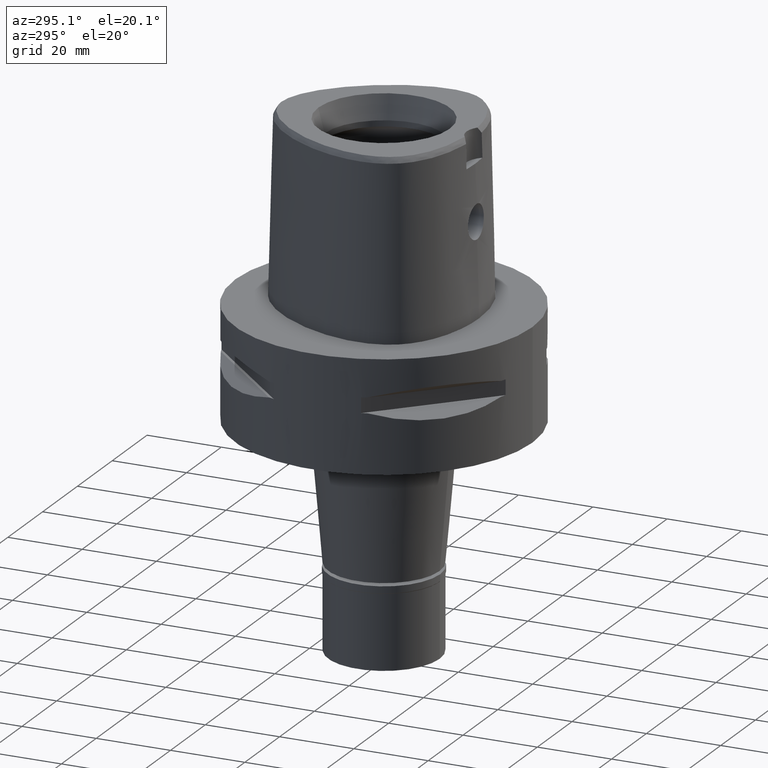
[diagram: clean part render]
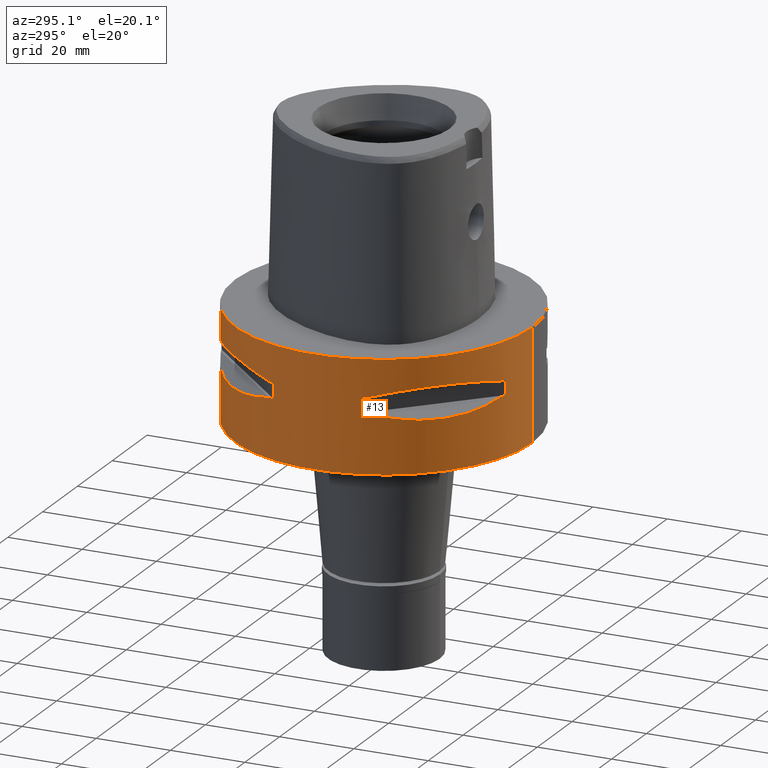
[diagram: same view with one face highlighted and labeled with its STEP entity id]
A machine part, auxiliary view. The second image highlights one B-rep face of the part: STEP entity #13.
In plain terms, the highlighted cylindrical surface (partial cylindrical patch) has radius 40 mm, axis along (0, 0, -1).
Its self-contained STEP definition (entity closure, byte-faithful):
#13 = ADVANCED_FACE ( 'NONE', ( #3137, #1986, #4714 ), #274, .T. ) ;
#48 = CARTESIAN_POINT ( 'NONE',  ( -36.35358138588213706, -16.81132763103370209, -14.94059947015962386 ) ) ;
#75 = CIRCLE ( 'NONE', #4243, 39.99999999999999289 ) ;
#95 = CARTESIAN_POINT ( 'NONE',  ( -25.62819065485258463, -30.77249687755037399, -16.26160051742709101 ) ) ;
#172 = CARTESIAN_POINT ( 'NONE',  ( 0.0000000000000000000, 1.275653338331999844E-14, -9.950000000000001066 ) ) ;
#200 = VERTEX_POINT ( 'NONE', #2397 ) ;
#203 = ORIENTED_EDGE ( 'NONE', *, *, #1944, .T. ) ;
#210 = DIRECTION ( 'NONE',  ( 0.0000000000000000000, 0.0000000000000000000, -1.000000000000000000 ) ) ;
#216 = CARTESIAN_POINT ( 'NONE',  ( -21.40429668490322612, 33.79139713908578102, -15.76966389594729101 ) ) ;
#240 = DIRECTION ( 'NONE',  ( 0.0000000000000000000, 0.0000000000000000000, -1.000000000000000000 ) ) ;
#264 = EDGE_CURVE ( 'NONE', #3837, #3893, #2383, .T. ) ;
#274 = CYLINDRICAL_SURFACE ( 'NONE', #4764, 40.00000000000000000 ) ;
#280 = CIRCLE ( 'NONE', #3214, 40.00000000000000000 ) ;
#288 = EDGE_CURVE ( 'NONE', #3042, #1076, #1004, .T. ) ;
#362 = CARTESIAN_POINT ( 'NONE',  ( -36.72682052670077013, 16.14402792110960050, -14.82054974552945303 ) ) ;
#417 = CARTESIAN_POINT ( 'NONE',  ( -18.89342208872277595, -35.39137327286401558, -15.39779115588540925 ) ) ;
#444 = CARTESIAN_POINT ( 'NONE',  ( -34.44518065739791268, -20.34261333236362645, -15.60313948594344780 ) ) ;
#476 = CARTESIAN_POINT ( 'NONE',  ( -16.10442380448739286, -36.74070924257178916, -9.189948522868267133 ) ) ;
#485 = LINE ( 'NONE', #3695, #998 ) ;
#516 = CARTESIAN_POINT ( 'NONE',  ( -30.34851826271897224, -26.21995747454407422, -16.33009976522122741 ) ) ;
#533 = EDGE_CURVE ( 'NONE', #1496, #3469, #280, .T. ) ;
#546 = VERTEX_POINT ( 'NONE', #2767 ) ;
#561 = ORIENTED_EDGE ( 'NONE', *, *, #3925, .F. ) ;
#563 = ORIENTED_EDGE ( 'NONE', *, *, #3445, .T. ) ;
#567 = ORIENTED_EDGE ( 'NONE', *, *, #4060, .T. ) ;
#573 = DIRECTION ( 'NONE',  ( 0.0000000000000000000, 0.0000000000000000000, 1.000000000000000000 ) ) ;
#618 = CARTESIAN_POINT ( 'NONE',  ( -20.91613153242406398, 34.09685321779756606, -15.69507322892952139 ) ) ;
#684 = VERTEX_POINT ( 'NONE', #2871 ) ;
#754 = CARTESIAN_POINT ( 'NONE',  ( -33.69065616467168667, 21.56243030661679327, -15.79309434609251639 ) ) ;
#794 = DIRECTION ( 'NONE',  ( -0.9558028356769561196, 0.2940084000702865574, 0.0000000000000000000 ) ) ;
#803 = DIRECTION ( 'NONE',  ( -0.9436555409818374596, 0.3309293277639132058, 0.0000000000000000000 ) ) ;
#818 = CARTESIAN_POINT ( 'NONE',  ( -33.75216276490080247, -21.46607685731505555, -15.77886817953058696 ) ) ;
#822 = DIRECTION ( 'NONE',  ( 0.0000000000000000000, 0.0000000000000000000, -1.000000000000000000 ) ) ;
#843 = CARTESIAN_POINT ( 'NONE',  ( -23.60097336452268024, -32.30995221952120744, -16.06165603927522056 ) ) ;
#866 = CARTESIAN_POINT ( 'NONE',  ( -33.91944728533206188, -21.20128033780140697, -15.73905907260549064 ) ) ;
#868 = ORIENTED_EDGE ( 'NONE', *, *, #1761, .F. ) ;
#871 = LINE ( 'NONE', #2399, #4335 ) ;
#897 = CARTESIAN_POINT ( 'NONE',  ( -13.23717311056000057, -37.74622163926999718, -9.950000000002001244 ) ) ;
#908 = CARTESIAN_POINT ( 'NONE',  ( -11.76033600280999991, -38.23211342708000160, -14.05000000000000071 ) ) ;
#928 = VECTOR ( 'NONE', #210, 1000.000000000000000 ) ;
#949 = CIRCLE ( 'NONE', #4925, 39.99999999999999289 ) ;
#962 = CARTESIAN_POINT ( 'NONE',  ( 0.0000000000000000000, 1.275653338331999844E-14, -14.05000000000000071 ) ) ;
#987 = DIRECTION ( 'NONE',  ( 0.0000000000000000000, 0.0000000000000000000, -1.000000000000000000 ) ) ;
#990 = EDGE_CURVE ( 'NONE', #3042, #4207, #1217, .T. ) ;
#998 = VECTOR ( 'NONE', #987, 1000.000000000000000 ) ;
#1004 = LINE ( 'NONE', #1055, #3294 ) ;
#1036 = EDGE_CURVE ( 'NONE', #4455, #1735, #949, .T. ) ;
#1055 = CARTESIAN_POINT ( 'NONE',  ( -38.23211342708000160, 11.76033600280999991, -14.05000000000000071 ) ) ;
#1076 = VERTEX_POINT ( 'NONE', #4018 ) ;
#1088 = CARTESIAN_POINT ( 'NONE',  ( -37.74622163926999718, -13.23717311056000057, -9.950000000002001244 ) ) ;
#1094 = CARTESIAN_POINT ( 'NONE',  ( 0.0000000000000000000, 1.275653338331999844E-14, 4.165000000000000036 ) ) ;
#1101 = EDGE_CURVE ( 'NONE', #1745, #1735, #1433, .T. ) ;
#1133 = CARTESIAN_POINT ( 'NONE',  ( -23.88355431037097887, 32.22577213857957901, -7.859897272571252813 ) ) ;
#1137 = CARTESIAN_POINT ( 'NONE',  ( 0.0000000000000000000, 1.275653338331999844E-14, -14.05000000000000071 ) ) ;
#1146 = CARTESIAN_POINT ( 'NONE',  ( 0.0000000000000000000, 1.275653338331999844E-14, 0.0000000000000000000 ) ) ;
#1154 = CARTESIAN_POINT ( 'NONE',  ( -32.30995221951103247, 23.60097336453846850, -16.06165603927749785 ) ) ;
#1166 = DIRECTION ( 'NONE',  ( -0.2940084000702865574, -0.9558028356769561196, 0.0000000000000000000 ) ) ;
#1170 = CARTESIAN_POINT ( 'NONE',  ( 0.0000000000000000000, 1.275653338331999844E-14, -30.00000000000000000 ) ) ;
#1217 = CIRCLE ( 'NONE', #4939, 39.99999999999999289 ) ;
#1242 = VERTEX_POINT ( 'NONE', #2139 ) ;
#1285 = VECTOR ( 'NONE', #240, 1000.000000000000000 ) ;
#1347 = AXIS2_PLACEMENT_3D ( 'NONE', #1983, #2036, #803 ) ;
#1394 = LINE ( 'NONE', #5014, #928 ) ;
#1403 = CARTESIAN_POINT ( 'NONE',  ( -37.74622163926999718, 13.23717311056000057, -9.950000000002001244 ) ) ;
#1413 = CIRCLE ( 'NONE', #4332, 39.99999999999997868 ) ;
#1433 = B_SPLINE_CURVE_WITH_KNOTS ( 'NONE', 3,
 ( #4868, #2812, #48, #3675, #444, #2445, #866, #2862, #4774, #2050, #818, #2516, #516, #2418, #95, #843, #2468, #3989, #3628, #1702, #3295, #3649, #4458, #417, #1650, #2022 ),
 .UNSPECIFIED., .F., .F.,
 ( 4, 1, 1, 1, 1, 1, 1, 2, 2, 2, 1, 1, 1, 1, 1, 1, 2, 2, 4 ),
 ( 0.0000000000000000000, 0.1249999999999758526, 0.1874999999999638900, 0.2187499999999580058, 0.2343749999999549805, 0.2421874999999535649, 0.2460937499999528988, 0.2480468749999527323, 0.2499999999999525380, 0.4999999999999500400, 0.6249999999999488187, 0.6874999999999481526, 0.7187499999999477085, 0.7343749999999477085, 0.7421874999999478195, 0.7460937499999479305, 0.7480468749999480416, 0.7499999999999482636, 1.000000000000000000 ),
 .UNSPECIFIED. ) ;
#1437 = CARTESIAN_POINT ( 'NONE',  ( -38.23211342708000160, -11.76033600280999991, -9.950000000000001066 ) ) ;
#1496 = VERTEX_POINT ( 'NONE', #3909 ) ;
#1504 = CARTESIAN_POINT ( 'NONE',  ( -13.23717311056000057, -37.74622163926999718, -14.05000000000000071 ) ) ;
#1508 = CIRCLE ( 'NONE', #3008, 39.99999999999999289 ) ;
#1523 = CARTESIAN_POINT ( 'NONE',  ( -26.20795918965216131, 30.36058330527165694, -7.669882118573493557 ) ) ;
#1527 = VERTEX_POINT ( 'NONE', #3623 ) ;
#1544 = CARTESIAN_POINT ( 'NONE',  ( -33.03835700910098438, 22.55421454657008340, -15.93168855142969598 ) ) ;
#1624 = CARTESIAN_POINT ( 'NONE',  ( -37.74622163926999718, 13.23717311056000057, -9.950000000002001244 ) ) ;
#1650 = CARTESIAN_POINT ( 'NONE',  ( -16.14402792110914930, -36.72682052670094777, -14.82054974552934468 ) ) ;
#1660 = CARTESIAN_POINT ( 'NONE',  ( -26.20795918965215776, -30.36058330527162852, -7.669863843587146235 ) ) ;
#1702 = CARTESIAN_POINT ( 'NONE',  ( -21.62017158009599527, -33.65365962422892210, -15.80156334789078265 ) ) ;
#1735 = VERTEX_POINT ( 'NONE', #1504 ) ;
#1745 = VERTEX_POINT ( 'NONE', #2684 ) ;
#1761 = EDGE_CURVE ( 'NONE', #1527, #3893, #3815, .T. ) ;
#1790 = ORIENTED_EDGE ( 'NONE', *, *, #2809, .T. ) ;
#1816 = VERTEX_POINT ( 'NONE', #2220 ) ;
#1817 = CARTESIAN_POINT ( 'NONE',  ( -21.46607685731531490, 33.75216276490056089, -15.77886817953056564 ) ) ;
#1845 = LINE ( 'NONE', #2661, #4659 ) ;
#1857 = ORIENTED_EDGE ( 'NONE', *, *, #1101, .F. ) ;
#1863 = EDGE_CURVE ( 'NONE', #4455, #684, #1845, .T. ) ;
#1871 = DIRECTION ( 'NONE',  ( -0.2940084000702865574, 0.9558028356769561196, 0.0000000000000000000 ) ) ;
#1944 = EDGE_CURVE ( 'NONE', #1816, #2707, #2696, .T. ) ;
#1962 = CARTESIAN_POINT ( 'NONE',  ( -33.56701934068217952, 21.75464223249340634, -15.82109001420632310 ) ) ;
#1983 = CARTESIAN_POINT ( 'NONE',  ( 0.0000000000000000000, 1.275653338331999844E-14, -9.950000000000001066 ) ) ;
#1986 = FACE_BOUND ( 'NONE', #3249, .T. ) ;
#2022 = CARTESIAN_POINT ( 'NONE',  ( -13.23717311056000057, -37.74622163926999718, -14.05000000000000071 ) ) ;
#2036 = DIRECTION ( 'NONE',  ( 0.0000000000000000000, 0.0000000000000000000, 1.000000000000000000 ) ) ;
#2048 = ORIENTED_EDGE ( 'NONE', *, *, #3016, .F. ) ;
#2050 = CARTESIAN_POINT ( 'NONE',  ( -33.76566745674986691, -21.44484052678344455, -15.77571175125594394 ) ) ;
#2056 = CARTESIAN_POINT ( 'NONE',  ( -11.76033600280999991, 38.23211342708000160, -14.05000000000000071 ) ) ;
#2101 = CARTESIAN_POINT ( 'NONE',  ( -13.23717311056000057, 37.74622163926999718, -14.05000000000000071 ) ) ;
#2132 = CARTESIAN_POINT ( 'NONE',  ( 0.0000000000000000000, 40.00000000000000000, 0.0000000000000000000 ) ) ;
#2139 = CARTESIAN_POINT ( 'NONE',  ( 0.0000000000000000000, 40.00000000000000000, -30.00000000000000000 ) ) ;
#2142 = ORIENTED_EDGE ( 'NONE', *, *, #1863, .F. ) ;
#2146 = VERTEX_POINT ( 'NONE', #1088 ) ;
#2167 = ORIENTED_EDGE ( 'NONE', *, *, #1036, .T. ) ;
#2220 = CARTESIAN_POINT ( 'NONE',  ( -13.23717311056000057, 37.74622163926999718, -9.950000000002001244 ) ) ;
#2222 = CARTESIAN_POINT ( 'NONE',  ( -21.20128033779905863, 33.91944728533289322, -15.73905907260483872 ) ) ;
#2265 = CIRCLE ( 'NONE', #2851, 40.00000000000000000 ) ;
#2278 = CARTESIAN_POINT ( 'NONE',  ( -19.18269457494219310, 35.11589783530285303, -15.40342377741356117 ) ) ;
#2338 = DIRECTION ( 'NONE',  ( 0.0000000000000000000, 0.0000000000000000000, -1.000000000000000000 ) ) ;
#2357 = CARTESIAN_POINT ( 'NONE',  ( -35.39137327286383794, 18.89342208872325202, -15.39779115588552827 ) ) ;
#2383 = CIRCLE ( 'NONE', #4034, 39.99999999999997868 ) ;
#2397 = CARTESIAN_POINT ( 'NONE',  ( -38.23211342708000160, -11.76033600280999991, -14.05000000000000071 ) ) ;
#2399 = CARTESIAN_POINT ( 'NONE',  ( 0.0000000000000000000, -40.00000000000000000, 0.0000000000000000000 ) ) ;
#2418 = CARTESIAN_POINT ( 'NONE',  ( -27.25214773983183036, -29.31642813391925273, -16.33014064577127655 ) ) ;
#2441 = DIRECTION ( 'NONE',  ( 0.0000000000000000000, 0.0000000000000000000, 1.000000000000000000 ) ) ;
#2445 = CARTESIAN_POINT ( 'NONE',  ( -34.09685321779600997, -20.91613153242858658, -15.69507322893076662 ) ) ;
#2468 = CARTESIAN_POINT ( 'NONE',  ( -22.55421454656086766, -33.03835700910691031, -15.93168855142837081 ) ) ;
#2480 = CARTESIAN_POINT ( 'NONE',  ( -23.88364259920621890, -32.22570670470194187, -7.859869859750699739 ) ) ;
#2516 = CARTESIAN_POINT ( 'NONE',  ( -32.16767032366980317, -23.95303639242290217, -16.14729882780574499 ) ) ;
#2563 = ORIENTED_EDGE ( 'NONE', *, *, #4765, .T. ) ;
#2579 = ORIENTED_EDGE ( 'NONE', *, *, #264, .T. ) ;
#2584 = CARTESIAN_POINT ( 'NONE',  ( -37.74622163926999718, 13.23717311056000057, -14.05000000000000071 ) ) ;
#2598 = DIRECTION ( 'NONE',  ( -0.3309293277639132058, 0.9436555409818374596, 0.0000000000000000000 ) ) ;
#2609 = CARTESIAN_POINT ( 'NONE',  ( -14.69039122918836426, 37.23659447744591233, -14.43521939501172469 ) ) ;
#2661 = CARTESIAN_POINT ( 'NONE',  ( -11.76033600280999991, -38.23211342708000160, -14.05000000000000071 ) ) ;
#2662 = CARTESIAN_POINT ( 'NONE',  ( -16.81132763101458849, 36.35358138588883037, -14.94059947015453105 ) ) ;
#2684 = CARTESIAN_POINT ( 'NONE',  ( -37.74622163926999718, -13.23717311056000057, -14.05000000000000071 ) ) ;
#2694 = ORIENTED_EDGE ( 'NONE', *, *, #3703, .T. ) ;
#2696 = B_SPLINE_CURVE_WITH_KNOTS ( 'NONE', 3,
 ( #3910, #3033, #5082, #1133, #1523, #4302, #3468, #3824, #2701, #1403 ),
 .UNSPECIFIED., .F., .F.,
 ( 4, 2, 2, 2, 4 ),
 ( 0.0000000000000000000, 0.2500000000000001110, 0.5000000000000002220, 0.7500000000000001110, 1.000000000000000000 ),
 .UNSPECIFIED. ) ;
#2701 = CARTESIAN_POINT ( 'NONE',  ( -36.74070924257178206, 16.10442380448742483, -9.189948522868263581 ) ) ;
#2707 = VERTEX_POINT ( 'NONE', #1624 ) ;
#2741 = DIRECTION ( 'NONE',  ( 0.0000000000000000000, -1.000000000000000000, 0.0000000000000000000 ) ) ;
#2749 = CARTESIAN_POINT ( 'NONE',  ( -33.71529052282350136, 21.52391145898932123, -15.78742602700011410 ) ) ;
#2767 = CARTESIAN_POINT ( 'NONE',  ( 0.0000000000000000000, -40.00000000000000000, -30.00000000000000000 ) ) ;
#2796 = CARTESIAN_POINT ( 'NONE',  ( -35.41596287855382030, -18.83173199174702717, -8.619939612211808821 ) ) ;
#2809 = EDGE_CURVE ( 'NONE', #4379, #2146, #75, .T. ) ;
#2812 = CARTESIAN_POINT ( 'NONE',  ( -37.23659447744208251, -14.69039122919928531, -14.43521939501465035 ) ) ;
#2851 = AXIS2_PLACEMENT_3D ( 'NONE', #1170, #3024, #4598 ) ;
#2862 = CARTESIAN_POINT ( 'NONE',  ( -33.82993376593436352, -21.34345216682292090, -15.76055673748811792 ) ) ;
#2871 = CARTESIAN_POINT ( 'NONE',  ( -11.76033600280999991, -38.23211342708000160, -9.950000000000001066 ) ) ;
#2927 = CIRCLE ( 'NONE', #4830, 39.99999999999997868 ) ;
#2949 = EDGE_CURVE ( 'NONE', #4379, #200, #485, .T. ) ;
#2978 = CARTESIAN_POINT ( 'NONE',  ( -38.23211342708000160, 11.76033600280999991, -14.05000000000000071 ) ) ;
#2985 = ORIENTED_EDGE ( 'NONE', *, *, #533, .T. ) ;
#3008 = AXIS2_PLACEMENT_3D ( 'NONE', #3372, #4954, #1871 ) ;
#3016 = EDGE_CURVE ( 'NONE', #3837, #4207, #3111, .T. ) ;
#3024 = DIRECTION ( 'NONE',  ( 0.0000000000000000000, 0.0000000000000000000, 1.000000000000000000 ) ) ;
#3033 = CARTESIAN_POINT ( 'NONE',  ( -16.10435486228978874, 36.74073341982094831, -9.189966798081966814 ) ) ;
#3042 = VERTEX_POINT ( 'NONE', #2978 ) ;
#3054 = CARTESIAN_POINT ( 'NONE',  ( -13.23717311056000057, 37.74622163926999718, -14.05000000000000071 ) ) ;
#3061 = CARTESIAN_POINT ( 'NONE',  ( -37.74622163926999718, 13.23717311056000057, -14.05000000000000071 ) ) ;
#3111 = B_SPLINE_CURVE_WITH_KNOTS ( 'NONE', 3,
 ( #3054, #2609, #2662, #2278, #4186, #618, #2222, #3793, #216, #3853, #1817, #3464, #5048, #4715, #3546, #1154, #1544, #3934, #1962, #3138, #754, #2749, #4323, #2357, #362, #2584 ),
 .UNSPECIFIED., .F., .F.,
 ( 4, 1, 1, 1, 1, 1, 1, 2, 2, 2, 1, 1, 1, 1, 1, 1, 2, 2, 4 ),
 ( 0.0000000000000000000, 0.1250000000000191513, 0.1875000000000286160, 0.2187500000000333344, 0.2343750000000358602, 0.2421875000000370537, 0.2460937500000373590, 0.2480468750000373868, 0.2500000000000374145, 0.5000000000000354161, 0.6250000000000345279, 0.6875000000000339728, 0.7187500000000336398, 0.7343750000000335287, 0.7421875000000334177, 0.7460937500000334177, 0.7480468750000331957, 0.7500000000000330846, 1.000000000000000000 ),
 .UNSPECIFIED. ) ;
#3134 = CARTESIAN_POINT ( 'NONE',  ( -36.74073341982093410, -16.10435486228974611, -9.189966798081965038 ) ) ;
#3137 = FACE_OUTER_BOUND ( 'NONE', #4154, .T. ) ;
#3138 = CARTESIAN_POINT ( 'NONE',  ( -33.65365962422809787, 21.62017158009728846, -15.80156334789097095 ) ) ;
#3184 = CARTESIAN_POINT ( 'NONE',  ( -37.74622163926999718, -13.23717311056000057, -9.950000000002001244 ) ) ;
#3196 = DIRECTION ( 'NONE',  ( -0.9558028356769561196, -0.2940084000702865574, 0.0000000000000000000 ) ) ;
#3214 = AXIS2_PLACEMENT_3D ( 'NONE', #1146, #3480, #2741 ) ;
#3243 = EDGE_LOOP ( 'NONE', ( #567, #2142, #2167, #1857, #563, #3251, #1790, #4980 ) ) ;
#3249 = EDGE_LOOP ( 'NONE', ( #4201, #4185, #5163, #2048, #2579, #868, #4665, #203 ) ) ;
#3251 = ORIENTED_EDGE ( 'NONE', *, *, #2949, .F. ) ;
#3256 = CARTESIAN_POINT ( 'NONE',  ( -18.83182902076456955, -35.41591128513820763, -8.619912199391260188 ) ) ;
#3287 = DIRECTION ( 'NONE',  ( 0.0000000000000000000, 0.0000000000000000000, -1.000000000000000000 ) ) ;
#3294 = VECTOR ( 'NONE', #573, 1000.000000000000000 ) ;
#3295 = CARTESIAN_POINT ( 'NONE',  ( -21.56243030661606852, -33.69065616467215563, -15.79309434609241869 ) ) ;
#3306 = DIRECTION ( 'NONE',  ( -0.9436555409818374596, -0.3309293277639132058, 0.0000000000000000000 ) ) ;
#3372 = CARTESIAN_POINT ( 'NONE',  ( 0.0000000000000000000, 1.275653338331999844E-14, -9.950000000000001066 ) ) ;
#3434 = CARTESIAN_POINT ( 'NONE',  ( -11.76033600280999991, 38.23211342708000160, -9.950000000000001066 ) ) ;
#3445 = EDGE_CURVE ( 'NONE', #1745, #200, #1413, .T. ) ;
#3464 = CARTESIAN_POINT ( 'NONE',  ( -23.95303639238277782, 32.16767032370128732, -16.14729882780219228 ) ) ;
#3468 = CARTESIAN_POINT ( 'NONE',  ( -32.22570670470196319, 23.88364259920621890, -7.859869859750697962 ) ) ;
#3469 = VERTEX_POINT ( 'NONE', #2132 ) ;
#3480 = DIRECTION ( 'NONE',  ( 0.0000000000000000000, 0.0000000000000000000, -1.000000000000000000 ) ) ;
#3516 = CIRCLE ( 'NONE', #1347, 39.99999999999997868 ) ;
#3546 = CARTESIAN_POINT ( 'NONE',  ( -30.77249687753683105, 25.62819065487364512, -16.26160051743014279 ) ) ;
#3609 = EDGE_CURVE ( 'NONE', #1527, #1816, #1508, .T. ) ;
#3623 = CARTESIAN_POINT ( 'NONE',  ( -11.76033600280999991, 38.23211342708000160, -9.950000000000001066 ) ) ;
#3626 = CARTESIAN_POINT ( 'NONE',  ( 0.0000000000000000000, 1.275653338331999844E-14, -9.950000000000001066 ) ) ;
#3628 = CARTESIAN_POINT ( 'NONE',  ( -21.75464223249087681, -33.56701934068381377, -15.82109001420596606 ) ) ;
#3649 = CARTESIAN_POINT ( 'NONE',  ( -21.52391145898895886, -33.71529052282375005, -15.78742602700008035 ) ) ;
#3675 = CARTESIAN_POINT ( 'NONE',  ( -35.11589783529782949, -19.18269457495653185, -15.40342377741739988 ) ) ;
#3695 = CARTESIAN_POINT ( 'NONE',  ( -38.23211342708000160, -11.76033600280999991, -9.950000000000001066 ) ) ;
#3703 = EDGE_CURVE ( 'NONE', #1242, #546, #2265, .T. ) ;
#3782 = CARTESIAN_POINT ( 'NONE',  ( 0.0000000000000000000, 1.275653338331999844E-14, -14.05000000000000071 ) ) ;
#3793 = CARTESIAN_POINT ( 'NONE',  ( -21.34345216682169877, 33.82993376593478985, -15.76055673748776798 ) ) ;
#3800 = DIRECTION ( 'NONE',  ( -0.3309293277639132058, -0.9436555409818374596, 0.0000000000000000000 ) ) ;
#3815 = LINE ( 'NONE', #3434, #1285 ) ;
#3824 = CARTESIAN_POINT ( 'NONE',  ( -35.41591128513821474, 18.83182902076458021, -8.619912199391258412 ) ) ;
#3837 = VERTEX_POINT ( 'NONE', #2101 ) ;
#3841 = DIRECTION ( 'NONE',  ( 0.0000000000000000000, 0.0000000000000000000, -1.000000000000000000 ) ) ;
#3853 = CARTESIAN_POINT ( 'NONE',  ( -21.44484052678305730, 33.76566745674997350, -15.77571175125580893 ) ) ;
#3879 = DIRECTION ( 'NONE',  ( 0.0000000000000000000, -1.000000000000000000, 0.0000000000000000000 ) ) ;
#3893 = VERTEX_POINT ( 'NONE', #2056 ) ;
#3909 = CARTESIAN_POINT ( 'NONE',  ( 0.0000000000000000000, -40.00000000000000000, 0.0000000000000000000 ) ) ;
#3910 = CARTESIAN_POINT ( 'NONE',  ( -13.23717311056000057, 37.74622163926999718, -9.950000000002001244 ) ) ;
#3925 = EDGE_CURVE ( 'NONE', #1496, #546, #871, .T. ) ;
#3934 = CARTESIAN_POINT ( 'NONE',  ( -33.39247868354666338, 22.02254759438567788, -15.85920599531292652 ) ) ;
#3962 = VERTEX_POINT ( 'NONE', #897 ) ;
#3968 = CARTESIAN_POINT ( 'NONE',  ( 0.0000000000000000000, 1.275653338331999844E-14, -14.05000000000000071 ) ) ;
#3976 = CARTESIAN_POINT ( 'NONE',  ( -32.22577213857958611, -23.88355431037092913, -7.859897272571249260 ) ) ;
#3989 = CARTESIAN_POINT ( 'NONE',  ( -22.02254759438074316, -33.39247868354982529, -15.85920599531222308 ) ) ;
#4018 = CARTESIAN_POINT ( 'NONE',  ( -38.23211342708000160, 11.76033600280999991, -9.950000000000001066 ) ) ;
#4034 = AXIS2_PLACEMENT_3D ( 'NONE', #3782, #3841, #2598 ) ;
#4054 = CARTESIAN_POINT ( 'NONE',  ( -30.36058330527162852, -26.20795918965216131, -7.669882118573493557 ) ) ;
#4060 = EDGE_CURVE ( 'NONE', #3962, #684, #2927, .T. ) ;
#4097 = DIRECTION ( 'NONE',  ( 0.0000000000000000000, 0.0000000000000000000, 1.000000000000000000 ) ) ;
#4154 = EDGE_LOOP ( 'NONE', ( #2694, #561, #2985, #2563 ) ) ;
#4185 = ORIENTED_EDGE ( 'NONE', *, *, #288, .F. ) ;
#4186 = CARTESIAN_POINT ( 'NONE',  ( -20.34261333235522784, 34.44518065740082591, -15.60313948594118116 ) ) ;
#4201 = ORIENTED_EDGE ( 'NONE', *, *, #4969, .T. ) ;
#4207 = VERTEX_POINT ( 'NONE', #3061 ) ;
#4236 = DIRECTION ( 'NONE',  ( 0.0000000000000000000, 0.0000000000000000000, 1.000000000000000000 ) ) ;
#4238 = DIRECTION ( 'NONE',  ( 0.0000000000000000000, 0.0000000000000000000, -1.000000000000000000 ) ) ;
#4243 = AXIS2_PLACEMENT_3D ( 'NONE', #3626, #2441, #3196 ) ;
#4302 = CARTESIAN_POINT ( 'NONE',  ( -30.36058330527164983, 26.20795918965216842, -7.669863843587146235 ) ) ;
#4323 = CARTESIAN_POINT ( 'NONE',  ( -33.72697758561022852, 21.50560509406268750, -15.78472370821743276 ) ) ;
#4332 = AXIS2_PLACEMENT_3D ( 'NONE', #962, #3287, #3306 ) ;
#4335 = VECTOR ( 'NONE', #822, 1000.000000000000000 ) ;
#4359 = DIRECTION ( 'NONE',  ( 0.0000000000000000000, 0.0000000000000000000, -1.000000000000000000 ) ) ;
#4379 = VERTEX_POINT ( 'NONE', #1437 ) ;
#4455 = VERTEX_POINT ( 'NONE', #908 ) ;
#4458 = CARTESIAN_POINT ( 'NONE',  ( -21.50560509406269460, -33.72697758561022852, -15.78472370821745407 ) ) ;
#4598 = DIRECTION ( 'NONE',  ( 0.0000000000000000000, 1.000000000000000000, 0.0000000000000000000 ) ) ;
#4659 = VECTOR ( 'NONE', #4236, 1000.000000000000000 ) ;
#4665 = ORIENTED_EDGE ( 'NONE', *, *, #3609, .T. ) ;
#4714 = FACE_BOUND ( 'NONE', #3243, .T. ) ;
#4715 = CARTESIAN_POINT ( 'NONE',  ( -29.31642813391150426, 27.25214773984385630, -16.33014064577301028 ) ) ;
#4764 = AXIS2_PLACEMENT_3D ( 'NONE', #1094, #4238, #3879 ) ;
#4765 = EDGE_CURVE ( 'NONE', #3469, #1242, #1394, .T. ) ;
#4774 = CARTESIAN_POINT ( 'NONE',  ( -33.79139713908553944, -21.40429668490394732, -15.76966389594752016 ) ) ;
#4830 = AXIS2_PLACEMENT_3D ( 'NONE', #172, #4097, #3800 ) ;
#4832 = CARTESIAN_POINT ( 'NONE',  ( -13.23717311056000057, -37.74622163926999718, -9.950000000002001244 ) ) ;
#4868 = CARTESIAN_POINT ( 'NONE',  ( -37.74622163926999718, -13.23717311056000057, -14.05000000000000071 ) ) ;
#4925 = AXIS2_PLACEMENT_3D ( 'NONE', #3968, #2338, #1166 ) ;
#4939 = AXIS2_PLACEMENT_3D ( 'NONE', #1137, #4359, #794 ) ;
#4954 = DIRECTION ( 'NONE',  ( 0.0000000000000000000, 0.0000000000000000000, 1.000000000000000000 ) ) ;
#4969 = EDGE_CURVE ( 'NONE', #2707, #1076, #3516, .T. ) ;
#4980 = ORIENTED_EDGE ( 'NONE', *, *, #5109, .T. ) ;
#5014 = CARTESIAN_POINT ( 'NONE',  ( 0.0000000000000000000, 40.00000000000000000, 0.0000000000000000000 ) ) ;
#5032 = B_SPLINE_CURVE_WITH_KNOTS ( 'NONE', 3,
 ( #3184, #3134, #2796, #3976, #4054, #1660, #2480, #3256, #476, #4832 ),
 .UNSPECIFIED., .F., .F.,
 ( 4, 2, 2, 2, 4 ),
 ( 0.0000000000000000000, 0.2500000000000000000, 0.5000000000000000000, 0.7500000000000000000, 1.000000000000000000 ),
 .UNSPECIFIED. ) ;
#5048 = CARTESIAN_POINT ( 'NONE',  ( -26.21995747455951431, 30.34851826269486708, -16.33009976521767115 ) ) ;
#5082 = CARTESIAN_POINT ( 'NONE',  ( -18.83173199174708046, 35.41596287855381320, -8.619939612211808821 ) ) ;
#5109 = EDGE_CURVE ( 'NONE', #2146, #3962, #5032, .T. ) ;
#5163 = ORIENTED_EDGE ( 'NONE', *, *, #990, .T. ) ;